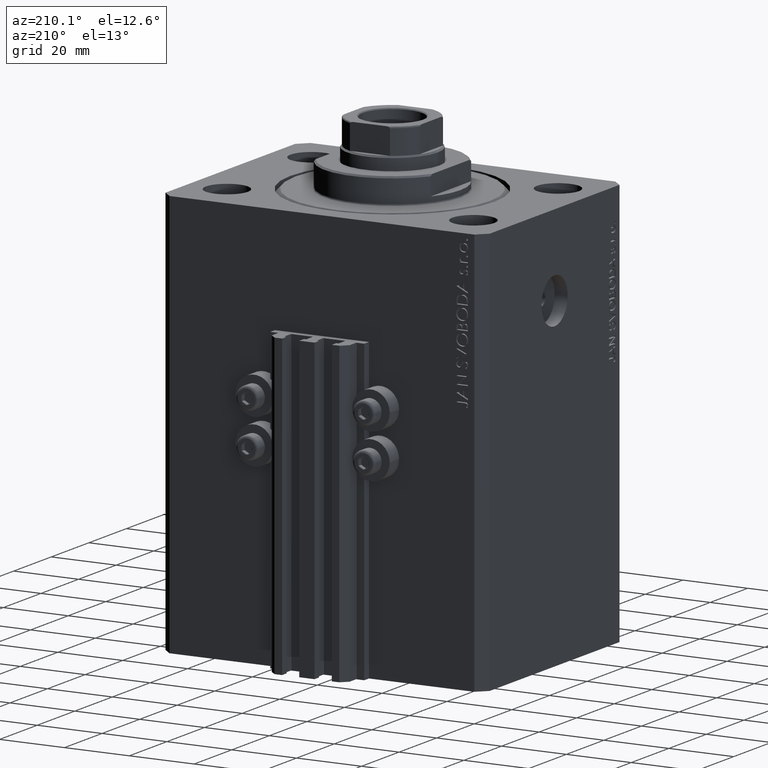
[diagram: clean part render]
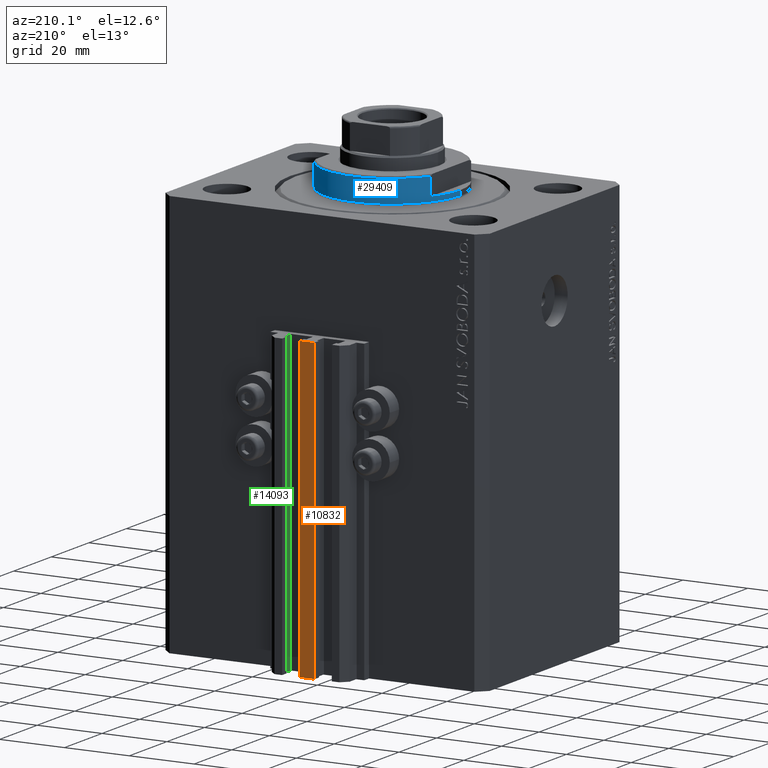
[diagram: same view with three faces highlighted in distinct colors, each labeled with its STEP entity id]
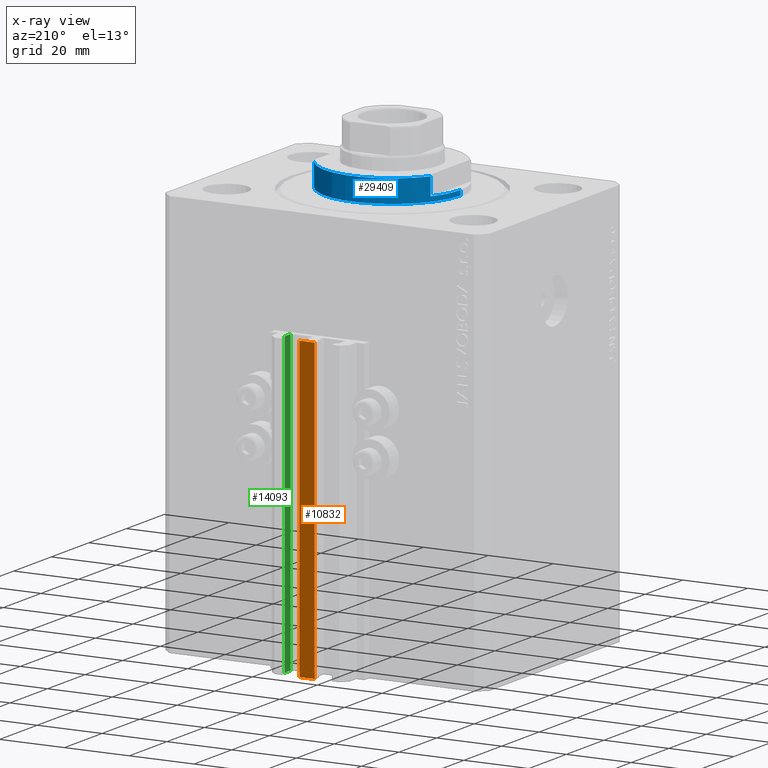
[diagram: x-ray of the same camera — body ghosted, the three highlighted faces saturated]
A machine part, auxiliary view with three faces highlighted in distinct colors.
The next image is the same camera in x-ray (body ghosted, the three faces saturated) — at least one of them is partly hidden behind the body in this view.
Their STEP definitions:

[orange] entity #10832 — the highlighted planar face has unit normal (0, -1, 0).
#252 = CARTESIAN_POINT ( 'NONE',  ( -2.350000000000003642, 45.50000000000000711, -125.0000000000000000 ) ) ;
#1148 = LINE ( 'NONE', #33936, #13377 ) ;
#3600 = PLANE ( 'NONE',  #28743 ) ;
#4440 = CARTESIAN_POINT ( 'NONE',  ( 2.349999999999999645, 45.50000000000000711, -125.0000000000000000 ) ) ;
#5290 = LINE ( 'NONE', #45257, #45426 ) ;
#5329 = DIRECTION ( 'NONE',  ( 1.000000000000000000, 0.000000000000000000, 0.000000000000000000 ) ) ;
#7308 = EDGE_CURVE ( 'NONE', #15855, #32567, #1148, .T. ) ;
#9387 = CARTESIAN_POINT ( 'NONE',  ( -2.350000000000003642, 45.50000000000000711, -125.0000000000000000 ) ) ;
#10016 = EDGE_LOOP ( 'NONE', ( #28124, #16899, #27038, #47061 ) ) ;
#10832 = ADVANCED_FACE ( 'NONE', ( #28993 ), #3600, .F. ) ;
#12051 = VECTOR ( 'NONE', #5329, 1000.000000000000000 ) ;
#12840 = VERTEX_POINT ( 'NONE', #4440 ) ;
#12990 = LINE ( 'NONE', #9387, #12051 ) ;
#13377 = VECTOR ( 'NONE', #15518, 1000.000000000000000 ) ;
#13569 = DIRECTION ( 'NONE',  ( 0.000000000000000000, 0.000000000000000000, 1.000000000000000000 ) ) ;
#15518 = DIRECTION ( 'NONE',  ( 1.000000000000000000, 0.000000000000000000, 0.000000000000000000 ) ) ;
#15855 = VERTEX_POINT ( 'NONE', #24275 ) ;
#16899 = ORIENTED_EDGE ( 'NONE', *, *, #28614, .F. ) ;
#17510 = DIRECTION ( 'NONE',  ( 0.000000000000000000, -0.000000000000000000, -1.000000000000000000 ) ) ;
#20171 = EDGE_CURVE ( 'NONE', #30055, #15855, #34638, .T. ) ;
#23466 = DIRECTION ( 'NONE',  ( 0.000000000000000000, 0.000000000000000000, 1.000000000000000000 ) ) ;
#24064 = CARTESIAN_POINT ( 'NONE',  ( -2.350000000000003642, 45.50000000000000711, -125.0000000000000000 ) ) ;
#24082 = CARTESIAN_POINT ( 'NONE',  ( -2.350000000000003642, 45.50000000000000711, -125.0000000000000000 ) ) ;
#24275 = CARTESIAN_POINT ( 'NONE',  ( -2.350000000000003642, 45.50000000000000711, -33.00000000000000000 ) ) ;
#27038 = ORIENTED_EDGE ( 'NONE', *, *, #36175, .F. ) ;
#28124 = ORIENTED_EDGE ( 'NONE', *, *, #7308, .T. ) ;
#28614 = EDGE_CURVE ( 'NONE', #12840, #32567, #5290, .T. ) ;
#28743 = AXIS2_PLACEMENT_3D ( 'NONE', #252, #32116, #17510 ) ;
#28913 = VECTOR ( 'NONE', #13569, 1000.000000000000000 ) ;
#28993 = FACE_OUTER_BOUND ( 'NONE', #10016, .T. ) ;
#30055 = VERTEX_POINT ( 'NONE', #24064 ) ;
#32116 = DIRECTION ( 'NONE',  ( 0.000000000000000000, -1.000000000000000000, 0.000000000000000000 ) ) ;
#32567 = VERTEX_POINT ( 'NONE', #36817 ) ;
#33936 = CARTESIAN_POINT ( 'NONE',  ( -2.350000000000003642, 45.50000000000000711, -33.00000000000000000 ) ) ;
#34638 = LINE ( 'NONE', #24082, #28913 ) ;
#36175 = EDGE_CURVE ( 'NONE', #30055, #12840, #12990, .T. ) ;
#36817 = CARTESIAN_POINT ( 'NONE',  ( 2.349999999999999645, 45.50000000000000711, -33.00000000000000000 ) ) ;
#45257 = CARTESIAN_POINT ( 'NONE',  ( 2.349999999999999645, 45.50000000000000711, -125.0000000000000000 ) ) ;
#45426 = VECTOR ( 'NONE', #23466, 1000.000000000000000 ) ;
#47061 = ORIENTED_EDGE ( 'NONE', *, *, #20171, .T. ) ;

[blue] entity #29409 — the highlighted cylindrical surface (partial cylindrical patch) has radius 21 mm, axis along (0, 0, -1).
#1580 = VERTEX_POINT ( 'NONE', #39958 ) ;
#2464 = DIRECTION ( 'NONE',  ( -0.000000000000000000, -0.000000000000000000, 1.000000000000000000 ) ) ;
#2739 = EDGE_CURVE ( 'NONE', #7280, #46783, #41478, .T. ) ;
#2770 = DIRECTION ( 'NONE',  ( -1.000000000000000000, 0.000000000000000000, 0.000000000000000000 ) ) ;
#3403 = AXIS2_PLACEMENT_3D ( 'NONE', #5296, #41652, #23474 ) ;
#3459 = VECTOR ( 'NONE', #28399, 1000.000000000000000 ) ;
#3461 = ORIENTED_EDGE ( 'NONE', *, *, #10716, .T. ) ;
#3886 = CARTESIAN_POINT ( 'NONE',  ( -21.00000000000000000, 2.571758278209441661E-15, -0.5000000000000004441 ) ) ;
#4926 = DIRECTION ( 'NONE',  ( -0.000000000000000000, -0.000000000000000000, 1.000000000000000000 ) ) ;
#5296 = CARTESIAN_POINT ( 'NONE',  ( 0.000000000000000000, 0.000000000000000000, -8.000000000000000000 ) ) ;
#5991 = ORIENTED_EDGE ( 'NONE', *, *, #38572, .T. ) ;
#6712 = LINE ( 'NONE', #36148, #39383 ) ;
#6731 = DIRECTION ( 'NONE',  ( 0.000000000000000000, 0.000000000000000000, 1.000000000000000000 ) ) ;
#7280 = VERTEX_POINT ( 'NONE', #23153 ) ;
#7817 = DIRECTION ( 'NONE',  ( 0.000000000000000000, 0.000000000000000000, -1.000000000000000000 ) ) ;
#9719 = DIRECTION ( 'NONE',  ( 0.000000000000000000, 0.000000000000000000, -1.000000000000000000 ) ) ;
#9758 = CARTESIAN_POINT ( 'NONE',  ( 21.00000000000000000, 0.000000000000000000, -0.5000000000000004441 ) ) ;
#9892 = LINE ( 'NONE', #24482, #29566 ) ;
#10716 = EDGE_CURVE ( 'NONE', #42744, #17349, #41748, .T. ) ;
#11357 = ORIENTED_EDGE ( 'NONE', *, *, #26154, .F. ) ;
#12114 = ORIENTED_EDGE ( 'NONE', *, *, #13749, .T. ) ;
#12323 = VERTEX_POINT ( 'NONE', #30888 ) ;
#13709 = ORIENTED_EDGE ( 'NONE', *, *, #30337, .F. ) ;
#13749 = EDGE_CURVE ( 'NONE', #28057, #42744, #37731, .T. ) ;
#15267 = CARTESIAN_POINT ( 'NONE',  ( -21.00000000000000000, 2.571758278209441661E-15, -2.000000000000000000 ) ) ;
#16201 = CIRCLE ( 'NONE', #39146, 21.00000000000000000 ) ;
#17349 = VERTEX_POINT ( 'NONE', #9758 ) ;
#18326 = AXIS2_PLACEMENT_3D ( 'NONE', #20380, #6731, #18902 ) ;
#18596 = DIRECTION ( 'NONE',  ( -1.000000000000000000, 0.000000000000000000, 0.000000000000000000 ) ) ;
#18902 = DIRECTION ( 'NONE',  ( -1.000000000000000000, 0.000000000000000000, 0.000000000000000000 ) ) ;
#19066 = CARTESIAN_POINT ( 'NONE',  ( 0.000000000000000000, 0.000000000000000000, -2.000000000000000000 ) ) ;
#19751 = CARTESIAN_POINT ( 'NONE',  ( 0.000000000000000000, 0.000000000000000000, -0.5000000000000004441 ) ) ;
#20380 = CARTESIAN_POINT ( 'NONE',  ( 0.000000000000000000, 0.000000000000000000, -7.500000000000016875 ) ) ;
#20682 = EDGE_CURVE ( 'NONE', #12323, #46460, #41278, .T. ) ;
#20723 = CARTESIAN_POINT ( 'NONE',  ( 0.000000000000000000, 0.000000000000000000, -2.000000000000000000 ) ) ;
#21319 = DIRECTION ( 'NONE',  ( -0.000000000000000000, -0.000000000000000000, 1.000000000000000000 ) ) ;
#23153 = CARTESIAN_POINT ( 'NONE',  ( 18.00000000000000000, 10.81665382639197048, -2.000000000000000000 ) ) ;
#23474 = DIRECTION ( 'NONE',  ( 1.000000000000000000, 0.000000000000000000, 0.000000000000000000 ) ) ;
#24442 = CARTESIAN_POINT ( 'NONE',  ( 21.00000000000000000, 0.000000000000000000, -2.000000000000000000 ) ) ;
#24482 = CARTESIAN_POINT ( 'NONE',  ( -18.00000000000000000, 10.81665382639197048, -8.000000000000000000 ) ) ;
#26154 = EDGE_CURVE ( 'NONE', #28057, #1580, #16201, .T. ) ;
#27006 = EDGE_LOOP ( 'NONE', ( #11357, #12114, #3461, #13709, #42658, #44101, #33425, #5991 ) ) ;
#27306 = CYLINDRICAL_SURFACE ( 'NONE', #3403, 21.00000000000000000 ) ;
#27682 = CARTESIAN_POINT ( 'NONE',  ( -18.00000000000000000, 10.81665382639197048, -7.500000000000016875 ) ) ;
#28057 = VERTEX_POINT ( 'NONE', #15267 ) ;
#28399 = DIRECTION ( 'NONE',  ( -0.000000000000000000, -0.000000000000000000, 1.000000000000000000 ) ) ;
#28740 = VECTOR ( 'NONE', #4926, 1000.000000000000000 ) ;
#29409 = ADVANCED_FACE ( 'NONE', ( #38093 ), #27306, .T. ) ;
#29566 = VECTOR ( 'NONE', #2464, 1000.000000000000000 ) ;
#30337 = EDGE_CURVE ( 'NONE', #46783, #17349, #6712, .T. ) ;
#30888 = CARTESIAN_POINT ( 'NONE',  ( 18.00000000000000000, 10.81665382639197048, -7.500000000000016875 ) ) ;
#31082 = EDGE_CURVE ( 'NONE', #12323, #7280, #47051, .T. ) ;
#31990 = CARTESIAN_POINT ( 'NONE',  ( 18.00000000000000000, 10.81665382639197048, -8.000000000000000000 ) ) ;
#33425 = ORIENTED_EDGE ( 'NONE', *, *, #20682, .T. ) ;
#33659 = CARTESIAN_POINT ( 'NONE',  ( -21.00000000000000000, 2.571758278209441661E-15, -8.000000000000000000 ) ) ;
#34355 = DIRECTION ( 'NONE',  ( 1.000000000000000000, 0.000000000000000000, 0.000000000000000000 ) ) ;
#36148 = CARTESIAN_POINT ( 'NONE',  ( 21.00000000000000000, 0.000000000000000000, -8.000000000000000000 ) ) ;
#37731 = LINE ( 'NONE', #33659, #28740 ) ;
#38093 = FACE_OUTER_BOUND ( 'NONE', #27006, .T. ) ;
#38572 = EDGE_CURVE ( 'NONE', #46460, #1580, #9892, .T. ) ;
#39146 = AXIS2_PLACEMENT_3D ( 'NONE', #20723, #9719, #2770 ) ;
#39383 = VECTOR ( 'NONE', #21319, 1000.000000000000000 ) ;
#39958 = CARTESIAN_POINT ( 'NONE',  ( -18.00000000000000000, 10.81665382639197048, -2.000000000000000000 ) ) ;
#41272 = DIRECTION ( 'NONE',  ( -0.000000000000000000, -0.000000000000000000, -1.000000000000000000 ) ) ;
#41278 = CIRCLE ( 'NONE', #18326, 21.00000000000000000 ) ;
#41478 = CIRCLE ( 'NONE', #43030, 21.00000000000000000 ) ;
#41652 = DIRECTION ( 'NONE',  ( -0.000000000000000000, -0.000000000000000000, 1.000000000000000000 ) ) ;
#41748 = CIRCLE ( 'NONE', #44025, 21.00000000000000000 ) ;
#42658 = ORIENTED_EDGE ( 'NONE', *, *, #2739, .F. ) ;
#42744 = VERTEX_POINT ( 'NONE', #3886 ) ;
#43030 = AXIS2_PLACEMENT_3D ( 'NONE', #19066, #7817, #18596 ) ;
#44025 = AXIS2_PLACEMENT_3D ( 'NONE', #19751, #41272, #34355 ) ;
#44101 = ORIENTED_EDGE ( 'NONE', *, *, #31082, .F. ) ;
#46460 = VERTEX_POINT ( 'NONE', #27682 ) ;
#46783 = VERTEX_POINT ( 'NONE', #24442 ) ;
#47051 = LINE ( 'NONE', #31990, #3459 ) ;

[green] entity #14093 — the highlighted planar face has unit normal (-1, 0, 0).
#2469 = EDGE_CURVE ( 'NONE', #10614, #21067, #31087, .T. ) ;
#3918 = FACE_OUTER_BOUND ( 'NONE', #29365, .T. ) ;
#6862 = VERTEX_POINT ( 'NONE', #21907 ) ;
#7973 = DIRECTION ( 'NONE',  ( -5.421010862427508365E-16, -1.000000000000000000, 0.000000000000000000 ) ) ;
#8611 = DIRECTION ( 'NONE',  ( 0.000000000000000000, 0.000000000000000000, 1.000000000000000000 ) ) ;
#8651 = CARTESIAN_POINT ( 'NONE',  ( 8.400000000000000355, 39.70000000000000995, -125.0000000000000000 ) ) ;
#9104 = VECTOR ( 'NONE', #8611, 1000.000000000000000 ) ;
#9502 = VERTEX_POINT ( 'NONE', #41731 ) ;
#10614 = VERTEX_POINT ( 'NONE', #36526 ) ;
#12196 = CARTESIAN_POINT ( 'NONE',  ( 8.400000000000000355, 42.90000000000001990, -125.0000000000000000 ) ) ;
#14093 = ADVANCED_FACE ( 'NONE', ( #3918 ), #15661, .T. ) ;
#14267 = EDGE_CURVE ( 'NONE', #9502, #6862, #21130, .T. ) ;
#15661 = PLANE ( 'NONE',  #31816 ) ;
#16324 = DIRECTION ( 'NONE',  ( 0.000000000000000000, 0.000000000000000000, 1.000000000000000000 ) ) ;
#18607 = EDGE_CURVE ( 'NONE', #21067, #6862, #40946, .T. ) ;
#19628 = LINE ( 'NONE', #23919, #9104 ) ;
#21067 = VERTEX_POINT ( 'NONE', #25789 ) ;
#21130 = LINE ( 'NONE', #31906, #21860 ) ;
#21860 = VECTOR ( 'NONE', #32856, 1000.000000000000000 ) ;
#21907 = CARTESIAN_POINT ( 'NONE',  ( 8.400000000000000355, 39.70000000000000995, -33.00000000000000000 ) ) ;
#22818 = DIRECTION ( 'NONE',  ( -1.000000000000000000, 5.421010862427508365E-16, 0.000000000000000000 ) ) ;
#23919 = CARTESIAN_POINT ( 'NONE',  ( 8.400000000000003908, 42.90000000000001990, -125.0000000000000000 ) ) ;
#25789 = CARTESIAN_POINT ( 'NONE',  ( 8.400000000000000355, 39.70000000000000995, -125.0000000000000000 ) ) ;
#26226 = ORIENTED_EDGE ( 'NONE', *, *, #14267, .F. ) ;
#29365 = EDGE_LOOP ( 'NONE', ( #26226, #42973, #33885, #40810 ) ) ;
#30499 = CARTESIAN_POINT ( 'NONE',  ( 8.400000000000000355, 42.90000000000001990, -125.0000000000000000 ) ) ;
#31087 = LINE ( 'NONE', #12196, #46094 ) ;
#31816 = AXIS2_PLACEMENT_3D ( 'NONE', #30499, #22818, #7973 ) ;
#31906 = CARTESIAN_POINT ( 'NONE',  ( 8.400000000000000355, 42.90000000000001990, -33.00000000000000000 ) ) ;
#32856 = DIRECTION ( 'NONE',  ( -5.421010862427508365E-16, -1.000000000000000000, 0.000000000000000000 ) ) ;
#33885 = ORIENTED_EDGE ( 'NONE', *, *, #2469, .T. ) ;
#36526 = CARTESIAN_POINT ( 'NONE',  ( 8.400000000000003908, 42.90000000000001990, -125.0000000000000000 ) ) ;
#36534 = VECTOR ( 'NONE', #16324, 1000.000000000000000 ) ;
#40810 = ORIENTED_EDGE ( 'NONE', *, *, #18607, .T. ) ;
#40946 = LINE ( 'NONE', #8651, #36534 ) ;
#41605 = DIRECTION ( 'NONE',  ( -5.421010862427508365E-16, -1.000000000000000000, 0.000000000000000000 ) ) ;
#41731 = CARTESIAN_POINT ( 'NONE',  ( 8.400000000000003908, 42.90000000000001990, -33.00000000000000000 ) ) ;
#42973 = ORIENTED_EDGE ( 'NONE', *, *, #44064, .F. ) ;
#44064 = EDGE_CURVE ( 'NONE', #10614, #9502, #19628, .T. ) ;
#46094 = VECTOR ( 'NONE', #41605, 1000.000000000000000 ) ;